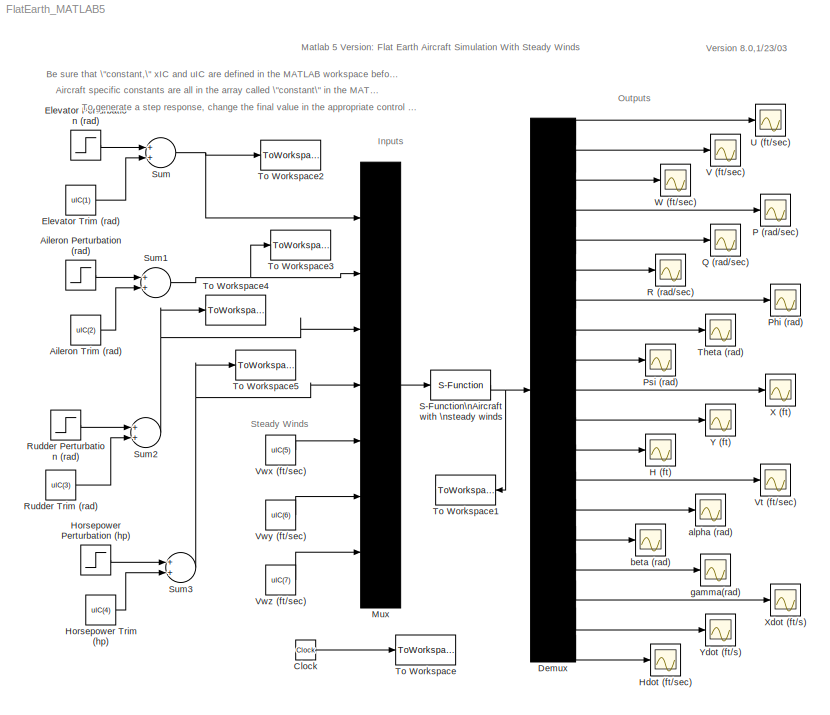
MODEL FlatEarth_MATLAB5
KIND model
CONFIG AbsTol = auto
CONFIG FixedStep = auto
CONFIG MaxStep = auto
CONFIG RelTol = 1e-3
CONFIG Solver = ode45
CONFIG StartTime = 0.0
CONFIG StopTime = 10.0
BLOCK [Step] Aileron Perturbation (rad)
  After = 0
  Before = 0
  Time = 1
BLOCK [Constant] Aileron Trim (rad)
  Value = uIC(2)
BLOCK [Clock] Clock
BLOCK [Demux] Demux
  Outputs = 19
  Ports = [1, 19, 0, 0, 0]
BLOCK [Step] Elevator Perturbation (rad)
  After = 0
  Before = 0
  Time = 1
BLOCK [Constant] Elevator Trim (rad)
  Value = uIC(1)
BLOCK [Scope] H (ft)
  Decimation = 1
  Floating = off
  Grid = on
  LimitMaxRows = on
  MaxRows = 5000
  Ports = [1, 0, 0, 0, 0]
  SampleInput = off
  SampleTime = 0
  SaveName = ScopeData11
  SaveToWorkspace = off
  TickLabels = on
  TimeRange = auto
  YMax = 5
  YMin = -5
  ZoomMode = on
BLOCK [Scope] Hdot (ft//sec)
  Decimation = 1
  Floating = off
  Grid = on
  LimitMaxRows = on
  MaxRows = 5000
  Ports = [1, 0, 0, 0, 0]
  SampleInput = off
  SampleTime = 0
  SaveName = ScopeData18
  SaveToWorkspace = off
  TickLabels = on
  TimeRange = auto
  YMax = 5
  YMin = -5
  ZoomMode = on
BLOCK [Step] Horsepower Perturbation (hp)
  After = 0
  Before = 0
  Time = 1
BLOCK [Constant] Horsepower Trim (hp)
  Value = uIC(4)
BLOCK [Mux] Mux
  Inputs = 7
  Ports = [7, 1, 0, 0, 0]
BLOCK [Scope] P (rad//sec)
  Decimation = 1
  Floating = off
  Grid = on
  LimitMaxRows = on
  MaxRows = 5000
  Ports = [1, 0, 0, 0, 0]
  SampleInput = off
  SampleTime = 0
  SaveName = ScopeData3
  SaveToWorkspace = off
  TickLabels = on
  TimeRange = auto
  YMax = 5
  YMin = -5
  ZoomMode = on
BLOCK [Scope] Phi (rad)
  Decimation = 1
  Floating = off
  Grid = on
  LimitMaxRows = on
  MaxRows = 5000
  Ports = [1, 0, 0, 0, 0]
  SampleInput = off
  SampleTime = 0
  SaveName = ScopeData6
  SaveToWorkspace = off
  TickLabels = on
  TimeRange = auto
  YMax = 5
  YMin = -5
  ZoomMode = on
BLOCK [Scope] Psi (rad)
  Decimation = 1
  Floating = off
  Grid = on
  LimitMaxRows = on
  MaxRows = 5000
  Ports = [1, 0, 0, 0, 0]
  SampleInput = off
  SampleTime = 0
  SaveName = ScopeData8
  SaveToWorkspace = off
  TickLabels = on
  TimeRange = auto
  YMax = 5
  YMin = -5
  ZoomMode = on
BLOCK [Scope] Q (rad//sec)
  Decimation = 1
  Floating = off
  Grid = on
  LimitMaxRows = on
  MaxRows = 5000
  Ports = [1, 0, 0, 0, 0]
  SampleInput = off
  SampleTime = 0
  SaveName = ScopeData4
  SaveToWorkspace = off
  TickLabels = on
  TimeRange = auto
  YMax = 5
  YMin = -5
  ZoomMode = on
BLOCK [Scope] R (rad//sec)
  Decimation = 1
  Floating = off
  Grid = on
  LimitMaxRows = on
  MaxRows = 5000
  Ports = [1, 0, 0, 0, 0]
  SampleInput = off
  SampleTime = 0
  SaveName = ScopeData5
  SaveToWorkspace = off
  TickLabels = on
  TimeRange = auto
  YMax = 5
  YMin = -5
  ZoomMode = on
BLOCK [Step] Rudder Perturbation (rad)
  After = 10/57.3
  Before = 0
  Time = 1
BLOCK [Constant] Rudder Trim (rad)
  Value = uIC(3)
BLOCK [S-Function] S-Function\nAircraft with \nsteady winds
  FunctionName = aircraft7
  Parameters = constant,xIC
  PortCounts = []
  Ports = [1, 1, 0, 0, 0]
  SFunctionModules = ''
BLOCK [Sum] Sum
  Inputs = ++
  Ports = [2, 1, 0, 0, 0]
BLOCK [Sum] Sum1
  Inputs = ++
  Ports = [2, 1, 0, 0, 0]
BLOCK [Sum] Sum2
  Inputs = ++
  Ports = [2, 1, 0, 0, 0]
BLOCK [Sum] Sum3
  Inputs = ++
  Ports = [2, 1, 0, 0, 0]
BLOCK [Scope] Theta (rad)
  Decimation = 1
  Floating = off
  Grid = on
  LimitMaxRows = on
  MaxRows = 5000
  Ports = [1, 0, 0, 0, 0]
  SampleInput = off
  SampleTime = 0
  SaveName = ScopeData7
  SaveToWorkspace = off
  TickLabels = on
  TimeRange = auto
  YMax = 5
  YMin = -5
  ZoomMode = on
BLOCK [ToWorkspace] To Workspace
  Buffer = 1000
  Decimation = 1
  SampleTime = -1
  VariableName = taircraft
BLOCK [ToWorkspace] To Workspace1
  Buffer = 1000
  Decimation = 1
  SampleTime = -1
  VariableName = yaircraft
BLOCK [ToWorkspace] To Workspace2
  Buffer = 1000
  Decimation = 1
  SampleTime = -1
  VariableName = deltaE
BLOCK [ToWorkspace] To Workspace3
  Buffer = 1000
  Decimation = 1
  SampleTime = -1
  VariableName = deltaA
BLOCK [ToWorkspace] To Workspace4
  Buffer = 1000
  Decimation = 1
  SampleTime = -1
  VariableName = deltaR
BLOCK [ToWorkspace] To Workspace5
  Buffer = 1000
  Decimation = 1
  SampleTime = -1
  VariableName = deltabhp
BLOCK [Scope] U (ft//sec)
  Decimation = 1
  Floating = off
  Grid = on
  LimitMaxRows = on
  MaxRows = 5000
  Ports = [1, 0, 0, 0, 0]
  SampleInput = off
  SampleTime = 0
  SaveName = ScopeData
  SaveToWorkspace = off
  TickLabels = on
  TimeRange = auto
  YMax = 5
  YMin = -5
  ZoomMode = on
BLOCK [Scope] V (ft//sec)
  Decimation = 1
  Floating = off
  Grid = on
  LimitMaxRows = on
  MaxRows = 5000
  Ports = [1, 0, 0, 0, 0]
  SampleInput = off
  SampleTime = 0
  SaveName = ScopeData1
  SaveToWorkspace = off
  TickLabels = on
  TimeRange = auto
  YMax = 5
  YMin = -5
  ZoomMode = on
BLOCK [Scope] Vt (ft//sec)
  Decimation = 1
  Floating = off
  Grid = on
  LimitMaxRows = on
  MaxRows = 5000
  Ports = [1, 0, 0, 0, 0]
  SampleInput = off
  SampleTime = 0
  SaveName = ScopeData12
  SaveToWorkspace = off
  TickLabels = on
  TimeRange = auto
  YMax = 5
  YMin = -5
  ZoomMode = on
BLOCK [Constant] Vwx (ft//sec)
  Value = uIC(5)
BLOCK [Constant] Vwy (ft//sec)
  Value = uIC(6)
BLOCK [Constant] Vwz (ft//sec)
  Value = uIC(7)
BLOCK [Scope] W (ft//sec)
  Decimation = 1
  Floating = off
  Grid = on
  LimitMaxRows = on
  MaxRows = 5000
  Ports = [1, 0, 0, 0, 0]
  SampleInput = off
  SampleTime = 0
  SaveName = ScopeData2
  SaveToWorkspace = off
  TickLabels = on
  TimeRange = auto
  YMax = 14
  YMin = 0
  ZoomMode = on
BLOCK [Scope] X (ft)
  Decimation = 1
  Floating = off
  Grid = on
  LimitMaxRows = on
  MaxRows = 5000
  Ports = [1, 0, 0, 0, 0]
  SampleInput = off
  SampleTime = 0
  SaveName = ScopeData9
  SaveToWorkspace = off
  TickLabels = on
  TimeRange = auto
  YMax = 5
  YMin = -5
  ZoomMode = on
BLOCK [Scope] Xdot (ft//s)
  Decimation = 1
  Floating = off
  Grid = on
  LimitMaxRows = on
  MaxRows = 5000
  Ports = [1, 0, 0, 0, 0]
  SampleInput = off
  SampleTime = 0
  SaveName = ScopeData16
  SaveToWorkspace = off
  TickLabels = on
  TimeRange = auto
  YMax = 5
  YMin = -5
  ZoomMode = on
BLOCK [Scope] Y (ft)
  Decimation = 1
  Floating = off
  Grid = on
  LimitMaxRows = on
  MaxRows = 5000
  Ports = [1, 0, 0, 0, 0]
  SampleInput = off
  SampleTime = 0
  SaveName = ScopeData10
  SaveToWorkspace = off
  TickLabels = on
  TimeRange = auto
  YMax = 5
  YMin = -5
  ZoomMode = on
BLOCK [Scope] Ydot (ft//s)
  Decimation = 1
  Floating = off
  Grid = on
  LimitMaxRows = on
  MaxRows = 5000
  Ports = [1, 0, 0, 0, 0]
  SampleInput = off
  SampleTime = 0
  SaveName = ScopeData17
  SaveToWorkspace = off
  TickLabels = on
  TimeRange = auto
  YMax = 5
  YMin = -5
  ZoomMode = on
BLOCK [Scope] alpha (rad)
  Decimation = 1
  Floating = off
  Grid = on
  LimitMaxRows = on
  MaxRows = 5000
  Ports = [1, 0, 0, 0, 0]
  SampleInput = off
  SampleTime = 0
  SaveName = ScopeData13
  SaveToWorkspace = off
  TickLabels = on
  TimeRange = auto
  YMax = 5
  YMin = -5
  ZoomMode = on
BLOCK [Scope] beta (rad)
  Decimation = 1
  Floating = off
  Grid = on
  LimitMaxRows = on
  MaxRows = 5000
  Ports = [1, 0, 0, 0, 0]
  SampleInput = off
  SampleTime = 0
  SaveName = ScopeData14
  SaveToWorkspace = off
  TickLabels = on
  TimeRange = auto
  YMax = 5
  YMin = -5
  ZoomMode = on
BLOCK [Scope] gamma(rad)
  Decimation = 1
  Floating = off
  Grid = on
  LimitMaxRows = on
  MaxRows = 5000
  Ports = [1, 0, 0, 0, 0]
  SampleInput = off
  SampleTime = 0
  SaveName = ScopeData15
  SaveToWorkspace = off
  TickLabels = on
  TimeRange = auto
  YMax = 5
  YMin = -5
  ZoomMode = on
LINE Aileron Perturbation (rad):1 -> Sum1:1
LINE Aileron Trim (rad):1 -> Sum1:2
LINE Clock:1 -> To Workspace:1
LINE Demux:1 -> U (ft//sec):1
LINE Demux:10 -> X (ft):1
LINE Demux:11 -> Y (ft):1
LINE Demux:12 -> H (ft):1
LINE Demux:13 -> Vt (ft//sec):1
LINE Demux:14 -> alpha (rad):1
LINE Demux:15 -> beta (rad):1
LINE Demux:16 -> gamma(rad):1
LINE Demux:17 -> Xdot (ft//s):1
LINE Demux:18 -> Ydot (ft//s):1
LINE Demux:19 -> Hdot (ft//sec):1
LINE Demux:2 -> V (ft//sec):1
LINE Demux:3 -> W (ft//sec):1
LINE Demux:4 -> P (rad//sec):1
LINE Demux:5 -> Q (rad//sec):1
LINE Demux:6 -> R (rad//sec):1
LINE Demux:7 -> Phi (rad):1
LINE Demux:8 -> Theta (rad):1
LINE Demux:9 -> Psi (rad):1
LINE Elevator Perturbation (rad):1 -> Sum:1
LINE Elevator Trim (rad):1 -> Sum:2
LINE Horsepower Perturbation (hp):1 -> Sum3:1
LINE Horsepower Trim (hp):1 -> Sum3:2
LINE Mux:1 -> S-Function\nAircraft with \nsteady winds:1
LINE Rudder Perturbation (rad):1 -> Sum2:1
LINE Rudder Trim (rad):1 -> Sum2:2
NET S-Function\nAircraft with \nsteady winds:1 -> Demux:1, To Workspace1:1
NET Sum1:1 -> Mux:2, To Workspace3:1
NET Sum2:1 -> Mux:3, To Workspace4:1
NET Sum3:1 -> Mux:4, To Workspace5:1
NET Sum:1 -> Mux:1, To Workspace2:1
LINE Vwx (ft//sec):1 -> Mux:5
LINE Vwy (ft//sec):1 -> Mux:6
LINE Vwz (ft//sec):1 -> Mux:7
note: NET lines group one-source signal fan-out (src -> all destinations, sorted); 1:1 wires keep LINE
